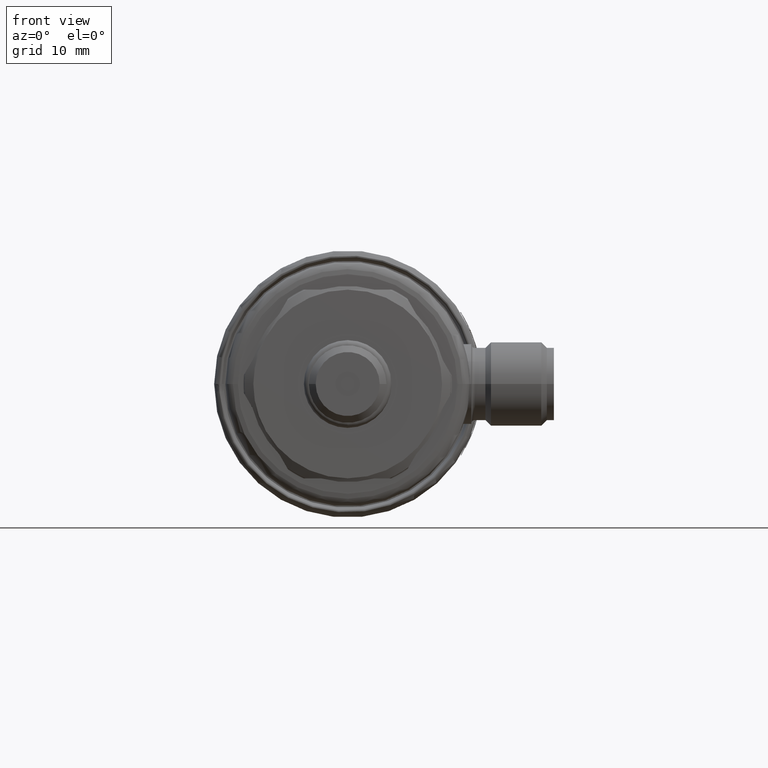
[diagram: clean part render]
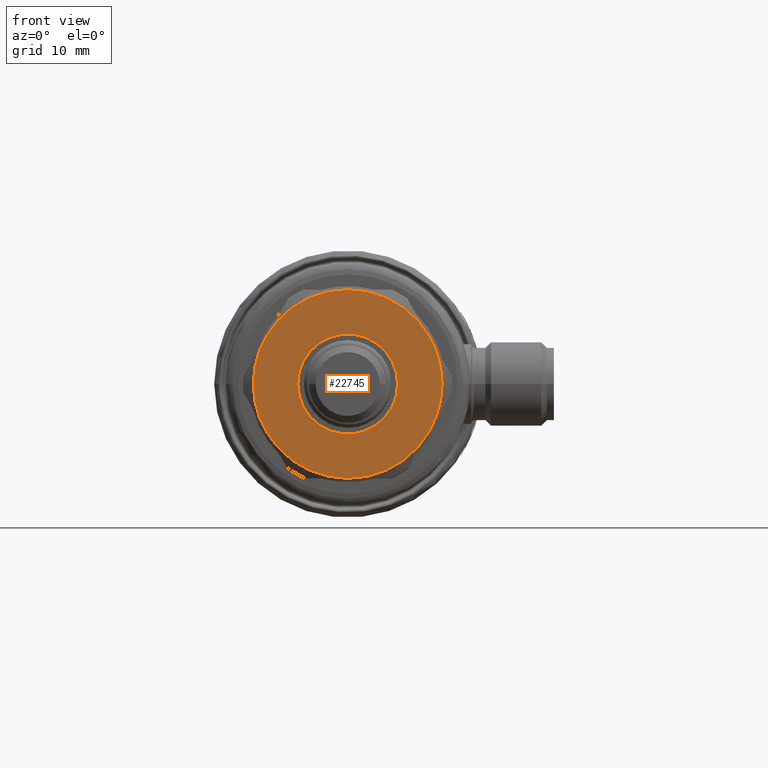
[diagram: same view with one face highlighted and labeled with its STEP entity id]
A machine part, front view. The second image highlights one B-rep face of the part: STEP entity #22745.
In plain terms, the highlighted planar face has unit normal (0, -1, 0).
Its self-contained STEP definition (entity closure, byte-faithful):
#3811=CARTESIAN_POINT('',(-4.602890925689E-1,-9.151773124135E-14,
-2.657480314851E-1));
#3869=CARTESIAN_POINT('',(0.E0,0.E0,0.E0));
#3870=DIRECTION('',(0.E0,1.E0,0.E0));
#3871=DIRECTION('',(8.660254037925E-1,0.E0,4.999999999861E-1));
#3872=AXIS2_PLACEMENT_3D('',#3869,#3870,#3871);
#3874=CARTESIAN_POINT('',(0.E0,0.E0,0.E0));
#3875=DIRECTION('',(0.E0,1.E0,0.E0));
#3876=DIRECTION('',(1.E0,0.E0,0.E0));
#3877=AXIS2_PLACEMENT_3D('',#3874,#3875,#3876);
#3879=CARTESIAN_POINT('',(0.E0,0.E0,0.E0));
#3880=DIRECTION('',(0.E0,1.E0,0.E0));
#3881=DIRECTION('',(8.660254037497E-1,0.E0,-5.000000000601E-1));
#3882=AXIS2_PLACEMENT_3D('',#3879,#3880,#3881);
#3884=CARTESIAN_POINT('',(0.E0,0.E0,0.E0));
#3885=DIRECTION('',(0.E0,1.E0,0.E0));
#3886=DIRECTION('',(-1.617820673126E-11,0.E0,-1.E0));
#3887=AXIS2_PLACEMENT_3D('',#3884,#3885,#3886);
#3889=CARTESIAN_POINT('',(0.E0,0.E0,0.E0));
#3890=DIRECTION('',(0.E0,1.E0,0.E0));
#3891=DIRECTION('',(-8.660254037925E-1,0.E0,-4.999999999861E-1));
#3892=AXIS2_PLACEMENT_3D('',#3889,#3890,#3891);
#3894=CARTESIAN_POINT('',(0.E0,0.E0,0.E0));
#3895=DIRECTION('',(0.E0,1.E0,0.E0));
#3896=DIRECTION('',(-1.E0,0.E0,1.715723284092E-14));
#3897=AXIS2_PLACEMENT_3D('',#3894,#3895,#3896);
#3899=CARTESIAN_POINT('',(0.E0,0.E0,0.E0));
#3900=DIRECTION('',(0.E0,1.E0,0.E0));
#3901=DIRECTION('',(-8.660254037497E-1,0.E0,5.000000000601E-1));
#3902=AXIS2_PLACEMENT_3D('',#3899,#3900,#3901);
#3904=CARTESIAN_POINT('',(0.E0,0.E0,0.E0));
#3905=DIRECTION('',(0.E0,1.E0,0.E0));
#3906=DIRECTION('',(1.617884774656E-11,0.E0,1.E0));
#3907=AXIS2_PLACEMENT_3D('',#3904,#3905,#3906);
#3909=CARTESIAN_POINT('',(0.E0,0.E0,0.E0));
#3910=DIRECTION('',(0.E0,-1.E0,0.E0));
#3911=DIRECTION('',(1.E0,0.E0,0.E0));
#3912=AXIS2_PLACEMENT_3D('',#3909,#3910,#3911);
#3914=CARTESIAN_POINT('',(0.E0,0.E0,0.E0));
#3915=DIRECTION('',(0.E0,-1.E0,0.E0));
#3916=DIRECTION('',(-1.E0,0.E0,0.E0));
#3917=AXIS2_PLACEMENT_3D('',#3914,#3915,#3916);
#4526=CARTESIAN_POINT('',(4.602890925436E-1,-9.159549147721E-14,
-2.657480315289E-1));
#4587=CARTESIAN_POINT('',(-1.263126347329E-11,-9.141683247200E-14,
-5.314960629921E-1));
#18824=VERTEX_POINT('',#4526);
#18832=VERTEX_POINT('',#4587);
#18838=VERTEX_POINT('',#3811);
#18848=CARTESIAN_POINT('',(-5.314960629921E-1,0.E0,0.E0));
#18849=CARTESIAN_POINT('',(-4.602890925442E-1,0.E0,2.657480315280E-1));
#18850=VERTEX_POINT('',#18848);
#18851=VERTEX_POINT('',#18849);
#18852=CARTESIAN_POINT('',(5.314960629921E-1,0.E0,0.E0));
#18853=VERTEX_POINT('',#18852);
#18854=CARTESIAN_POINT('',(4.602890925669E-1,0.E0,2.657480314887E-1));
#18855=VERTEX_POINT('',#18854);
#18856=CARTESIAN_POINT('',(8.598982637054E-12,0.E0,5.314960629921E-1));
#18857=VERTEX_POINT('',#18856);
#18858=CARTESIAN_POINT('',(2.814960629921E-1,0.E0,0.E0));
#18859=CARTESIAN_POINT('',(-2.814960629921E-1,0.E0,0.E0));
#18860=VERTEX_POINT('',#18858);
#18861=VERTEX_POINT('',#18859);
#22718=CARTESIAN_POINT('',(0.E0,0.E0,0.E0));
#22719=DIRECTION('',(0.E0,-1.E0,0.E0));
#22720=DIRECTION('',(-1.E0,0.E0,0.E0));
#22721=AXIS2_PLACEMENT_3D('',#22718,#22719,#22720);
#22722=PLANE('',#22721);
#22724=ORIENTED_EDGE('',*,*,#22723,.T.);
#22726=ORIENTED_EDGE('',*,*,#22725,.T.);
#22728=ORIENTED_EDGE('',*,*,#22727,.T.);
#22730=ORIENTED_EDGE('',*,*,#22729,.T.);
#22731=ORIENTED_EDGE('',*,*,#22708,.T.);
#22732=ORIENTED_EDGE('',*,*,#22706,.T.);
#22734=ORIENTED_EDGE('',*,*,#22733,.T.);
#22736=ORIENTED_EDGE('',*,*,#22735,.T.);
#22737=EDGE_LOOP('',(#22724,#22726,#22728,#22730,#22731,#22732,#22734,#22736));
#22738=FACE_OUTER_BOUND('',#22737,.F.);
#22740=ORIENTED_EDGE('',*,*,#22739,.T.);
#22742=ORIENTED_EDGE('',*,*,#22741,.T.);
#22743=EDGE_LOOP('',(#22740,#22742));
#22744=FACE_BOUND('',#22743,.F.);
#3873=CIRCLE('',#3872,5.314960629921E-1);
#3878=CIRCLE('',#3877,5.314960629921E-1);
#3883=CIRCLE('',#3882,5.314960629921E-1);
#3888=CIRCLE('',#3887,5.314960629921E-1);
#3893=CIRCLE('',#3892,5.314960629921E-1);
#3898=CIRCLE('',#3897,5.314960629921E-1);
#3903=CIRCLE('',#3902,5.314960629921E-1);
#3908=CIRCLE('',#3907,5.314960629921E-1);
#3913=CIRCLE('',#3912,2.814960629921E-1);
#3918=CIRCLE('',#3917,2.814960629921E-1);
#22706=EDGE_CURVE('',#18850,#18851,#3898,.T.);
#22708=EDGE_CURVE('',#18838,#18850,#3893,.T.);
#22723=EDGE_CURVE('',#18855,#18853,#3873,.T.);
#22725=EDGE_CURVE('',#18853,#18824,#3878,.T.);
#22727=EDGE_CURVE('',#18824,#18832,#3883,.T.);
#22729=EDGE_CURVE('',#18832,#18838,#3888,.T.);
#22733=EDGE_CURVE('',#18851,#18857,#3903,.T.);
#22735=EDGE_CURVE('',#18857,#18855,#3908,.T.);
#22739=EDGE_CURVE('',#18860,#18861,#3913,.T.);
#22741=EDGE_CURVE('',#18861,#18860,#3918,.T.);
#22745=ADVANCED_FACE('',(#22738,#22744),#22722,.T.);